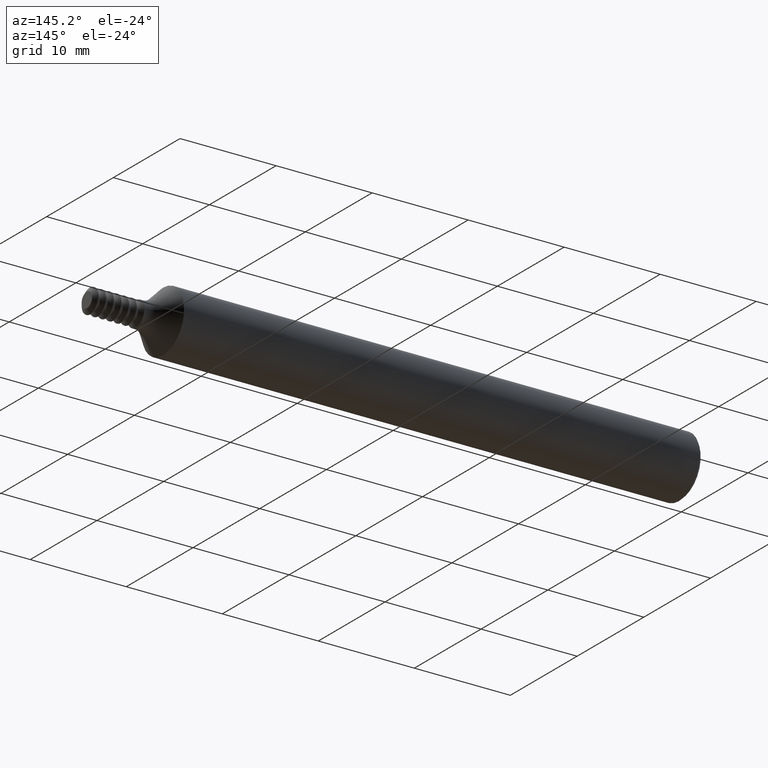
[diagram: clean part render]
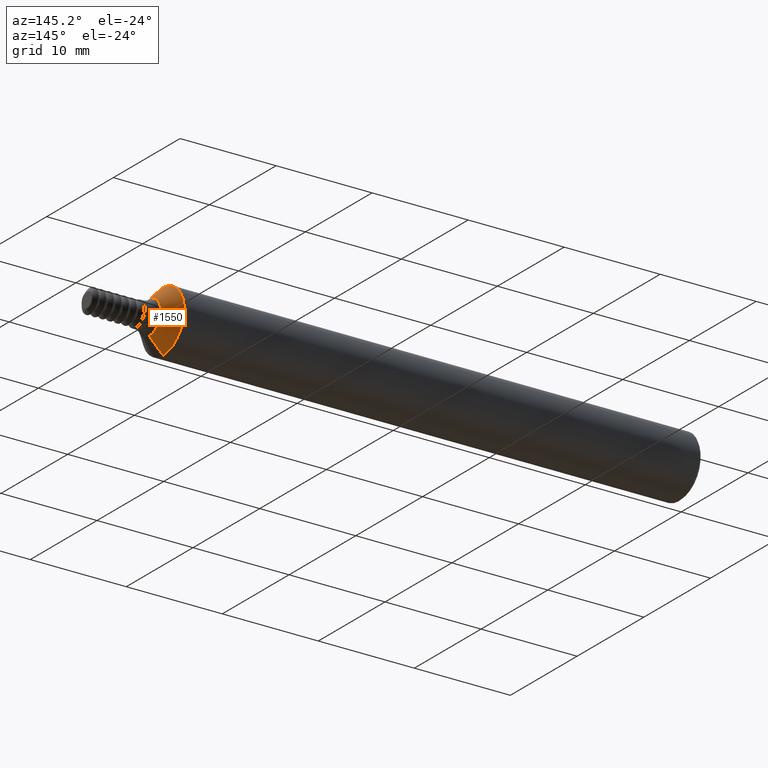
[diagram: same view with one face highlighted and labeled with its STEP entity id]
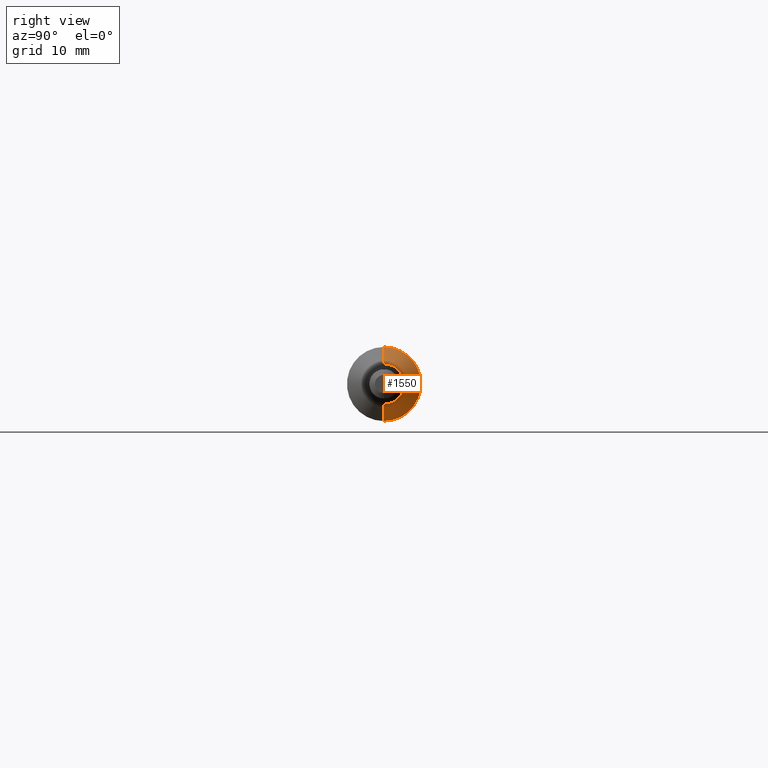
[diagram: same view with one face highlighted and labeled with its STEP entity id]
A machine part, auxiliary view. The second image highlights one B-rep face of the part: STEP entity #1550.
A second angle (right view) of the same face is appended — the face is thin or edge-on in the first view.
In plain terms, the highlighted conical surface has half-angle 45 deg.
Its self-contained STEP definition (entity closure, byte-faithful):
#37 = CIRCLE ( 'NONE', #684, 0.1248500000000000026 ) ;
#96 = EDGE_CURVE ( 'NONE', #321, #864, #133, .T. ) ;
#100 = DIRECTION ( 'NONE',  ( -1.000000000000000000, -0.0000000000000000000, -0.0000000000000000000 ) ) ;
#133 = LINE ( 'NONE', #447, #1454 ) ;
#185 = DIRECTION ( 'NONE',  ( -0.7071067811865459074, 8.659560562354951347E-17, -0.7071067811865490160 ) ) ;
#244 = AXIS2_PLACEMENT_3D ( 'NONE', #1333, #1096, #1579 ) ;
#269 = DIRECTION ( 'NONE',  ( -0.7071067811865459074, 0.0000000000000000000, 0.7071067811865490160 ) ) ;
#321 = VERTEX_POINT ( 'NONE', #601 ) ;
#445 = ORIENTED_EDGE ( 'NONE', *, *, #625, .T. ) ;
#447 = CARTESIAN_POINT ( 'NONE',  ( 2.181776406871192897, 0.0000000000000000000, 0.06807359312880721658 ) ) ;
#467 = CARTESIAN_POINT ( 'NONE',  ( 2.181776406871192897, 8.336610793165300608E-18, -0.06807359312880721658 ) ) ;
#511 = EDGE_LOOP ( 'NONE', ( #445, #1421, #1170, #1471 ) ) ;
#551 = EDGE_CURVE ( 'NONE', #864, #1204, #37, .T. ) ;
#601 = CARTESIAN_POINT ( 'NONE',  ( 2.181776406871192897, 0.0000000000000000000, 0.06807359312880721658 ) ) ;
#625 = EDGE_CURVE ( 'NONE', #321, #979, #1337, .T. ) ;
#660 = FACE_OUTER_BOUND ( 'NONE', #511, .T. ) ;
#684 = AXIS2_PLACEMENT_3D ( 'NONE', #1013, #997, #989 ) ;
#850 = CARTESIAN_POINT ( 'NONE',  ( 2.181776406871192897, 0.0000000000000000000, 0.0000000000000000000 ) ) ;
#864 = VERTEX_POINT ( 'NONE', #1019 ) ;
#979 = VERTEX_POINT ( 'NONE', #1167 ) ;
#988 = AXIS2_PLACEMENT_3D ( 'NONE', #850, #100, #1493 ) ;
#989 = DIRECTION ( 'NONE',  ( 0.0000000000000000000, 0.0000000000000000000, 1.000000000000000000 ) ) ;
#997 = DIRECTION ( 'NONE',  ( -1.000000000000000000, -0.0000000000000000000, -0.0000000000000000000 ) ) ;
#1013 = CARTESIAN_POINT ( 'NONE',  ( 2.125000000000000000, 0.0000000000000000000, 0.0000000000000000000 ) ) ;
#1019 = CARTESIAN_POINT ( 'NONE',  ( 2.125000000000000000, 0.0000000000000000000, 0.1248500000000000026 ) ) ;
#1081 = CARTESIAN_POINT ( 'NONE',  ( 2.125000000000000000, 1.528971528735470422E-17, -0.1248500000000000026 ) ) ;
#1096 = DIRECTION ( 'NONE',  ( -1.000000000000000000, -0.0000000000000000000, -0.0000000000000000000 ) ) ;
#1167 = CARTESIAN_POINT ( 'NONE',  ( 2.181776406871192897, 1.181316304026000241E-17, -0.06807359312880721658 ) ) ;
#1170 = ORIENTED_EDGE ( 'NONE', *, *, #551, .F. ) ;
#1204 = VERTEX_POINT ( 'NONE', #1081 ) ;
#1240 = CONICAL_SURFACE ( 'NONE', #244, 0.06807359312880721658, 0.7853981633974504994 ) ;
#1323 = VECTOR ( 'NONE', #185, 39.37007874015748854 ) ;
#1333 = CARTESIAN_POINT ( 'NONE',  ( 2.181776406871192897, 0.0000000000000000000, 0.0000000000000000000 ) ) ;
#1337 = CIRCLE ( 'NONE', #988, 0.06807359312880721658 ) ;
#1421 = ORIENTED_EDGE ( 'NONE', *, *, #1554, .T. ) ;
#1454 = VECTOR ( 'NONE', #269, 39.37007874015748854 ) ;
#1471 = ORIENTED_EDGE ( 'NONE', *, *, #96, .F. ) ;
#1493 = DIRECTION ( 'NONE',  ( 0.0000000000000000000, 0.0000000000000000000, 1.000000000000000000 ) ) ;
#1550 = ADVANCED_FACE ( 'NONE', ( #660 ), #1240, .T. ) ;
#1554 = EDGE_CURVE ( 'NONE', #979, #1204, #1590, .T. ) ;
#1579 = DIRECTION ( 'NONE',  ( 0.0000000000000000000, 0.0000000000000000000, 1.000000000000000000 ) ) ;
#1590 = LINE ( 'NONE', #467, #1323 ) ;